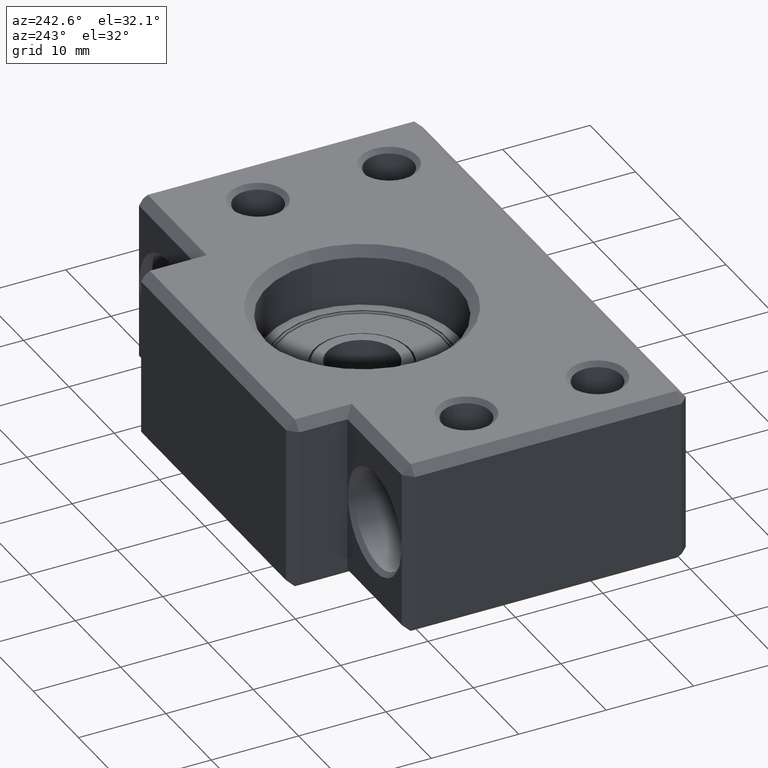
[diagram: clean part render]
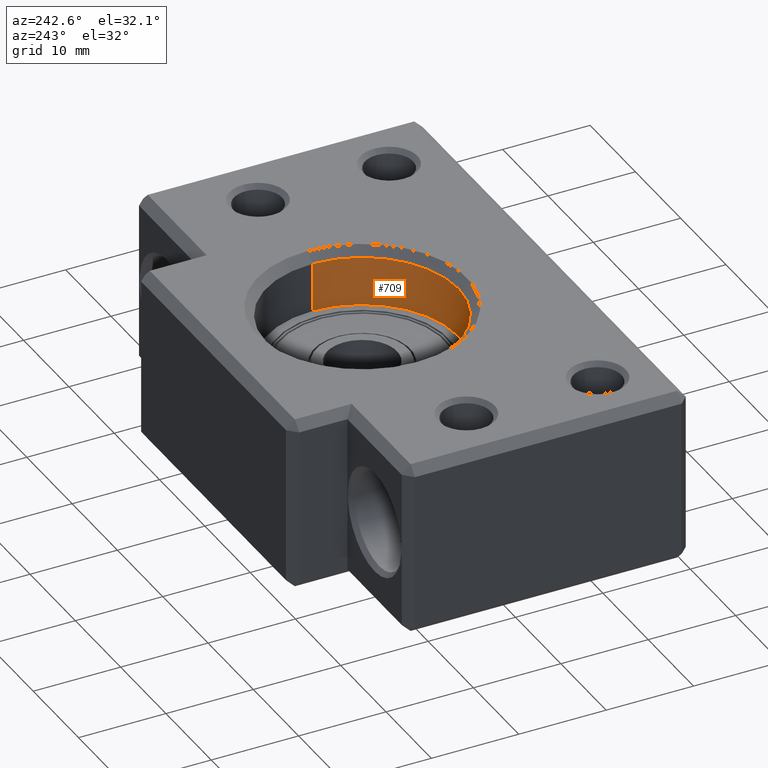
[diagram: same view with one face highlighted and labeled with its STEP entity id]
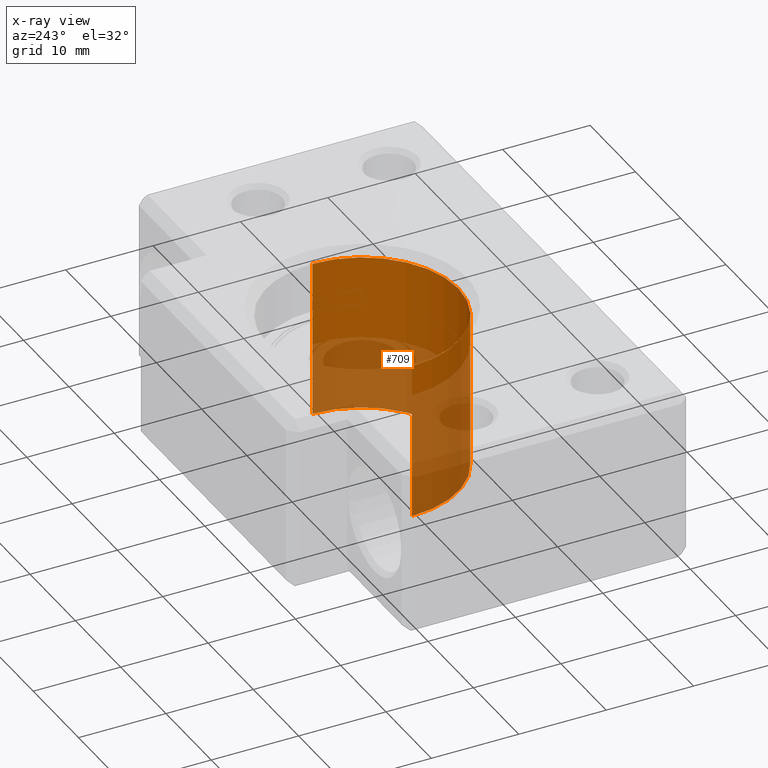
[diagram: x-ray of the same camera — body ghosted, the highlighted face saturated]
A machine part, auxiliary view. The second image highlights one B-rep face of the part: STEP entity #709.
The next image is the same camera in x-ray: the body ghosted, the highlighted face saturated — about 51% of this face is hidden behind the body in this view.
In plain terms, the highlighted cylindrical surface (partial cylindrical patch) has radius 11 mm, axis along (-0, -0, -1).
Its self-contained STEP definition (entity closure, byte-faithful):
#580 = EDGE_CURVE ( 'NONE', #581, #582, #1902, .T. ) ;
#581 = VERTEX_POINT ( 'NONE', #1897 ) ;
#582 = VERTEX_POINT ( 'NONE', #1896 ) ;
#709 = ADVANCED_FACE ( 'NONE', ( #2294 ), #2292, .F. ) ;
#710 = EDGE_LOOP ( 'NONE', ( #711, #712, #714, #5974 ) ) ;
#711 = ORIENTED_EDGE ( 'NONE', *, *, #580, .T. ) ;
#712 = ORIENTED_EDGE ( 'NONE', *, *, #713, .T. ) ;
#713 = EDGE_CURVE ( 'NONE', #582, #5695, #2287, .T. ) ;
#714 = ORIENTED_EDGE ( 'NONE', *, *, #5693, .T. ) ;
#1896 = CARTESIAN_POINT ( 'NONE',  ( 11.00000000000001200, 21.99999999999999300, 8.999999999999987600 ) ) ;
#1897 = CARTESIAN_POINT ( 'NONE',  ( -10.99999999999998600, 21.99999999999999300, 8.999999999999987600 ) ) ;
#1898 = DIRECTION ( 'NONE',  ( 1.000000000000000000, 0.0000000000000000000, 0.0000000000000000000 ) ) ;
#1899 = DIRECTION ( 'NONE',  ( 0.0000000000000000000, 0.0000000000000000000, 1.000000000000000000 ) ) ;
#1900 = CARTESIAN_POINT ( 'NONE',  ( 1.442981060739971800E-014, 21.99999999999999300, 8.999999999999987600 ) ) ;
#1901 = AXIS2_PLACEMENT_3D ( 'NONE', #1900, #1899, #1898 ) ;
#1902 = CIRCLE ( 'NONE', #1901, 11.00000000000000000 ) ;
#2284 = DIRECTION ( 'NONE',  ( -0.0000000000000000000, -0.0000000000000000000, -1.000000000000000000 ) ) ;
#2285 = VECTOR ( 'NONE', #2284, 1000.000000000000000 ) ;
#2286 = CARTESIAN_POINT ( 'NONE',  ( 11.00000000000001200, 21.99999999999999300, 10.00000000000000000 ) ) ;
#2287 = LINE ( 'NONE', #2286, #2285 ) ;
#2288 = DIRECTION ( 'NONE',  ( -1.000000000000000000, 0.0000000000000000000, 0.0000000000000000000 ) ) ;
#2289 = DIRECTION ( 'NONE',  ( -0.0000000000000000000, -0.0000000000000000000, -1.000000000000000000 ) ) ;
#2290 = CARTESIAN_POINT ( 'NONE',  ( 1.442981060739971800E-014, 21.99999999999999300, 10.00000000000000000 ) ) ;
#2291 = AXIS2_PLACEMENT_3D ( 'NONE', #2290, #2289, #2288 ) ;
#2292 = CYLINDRICAL_SURFACE ( 'NONE', #2291, 11.00000000000000000 ) ;
#2294 = FACE_OUTER_BOUND ( 'NONE', #710, .T. ) ;
#3694 = CARTESIAN_POINT ( 'NONE',  ( 11.00000000000001200, 21.99999999999999300, -8.999999999999989300 ) ) ;
#3699 = DIRECTION ( 'NONE',  ( 1.000000000000000000, 0.0000000000000000000, 0.0000000000000000000 ) ) ;
#3700 = DIRECTION ( 'NONE',  ( -0.0000000000000000000, -0.0000000000000000000, -1.000000000000000000 ) ) ;
#3701 = CARTESIAN_POINT ( 'NONE',  ( 1.442981060739971800E-014, 21.99999999999999300, -8.999999999999989300 ) ) ;
#3702 = AXIS2_PLACEMENT_3D ( 'NONE', #3701, #3700, #3699 ) ;
#3707 = CIRCLE ( 'NONE', #3702, 11.00000000000000000 ) ;
#3751 = CARTESIAN_POINT ( 'NONE',  ( -10.99999999999998600, 21.99999999999999300, -8.999999999999989300 ) ) ;
#4222 = DIRECTION ( 'NONE',  ( -0.0000000000000000000, -0.0000000000000000000, -1.000000000000000000 ) ) ;
#4223 = VECTOR ( 'NONE', #4222, 1000.000000000000000 ) ;
#4224 = CARTESIAN_POINT ( 'NONE',  ( -10.99999999999998600, 21.99999999999999300, 10.00000000000000000 ) ) ;
#4225 = LINE ( 'NONE', #4224, #4223 ) ;
#5693 = EDGE_CURVE ( 'NONE', #5695, #5699, #3707, .T. ) ;
#5695 = VERTEX_POINT ( 'NONE', #3694 ) ;
#5699 = VERTEX_POINT ( 'NONE', #3751 ) ;
#5974 = ORIENTED_EDGE ( 'NONE', *, *, #5983, .F. ) ;
#5983 = EDGE_CURVE ( 'NONE', #581, #5699, #4225, .T. ) ;